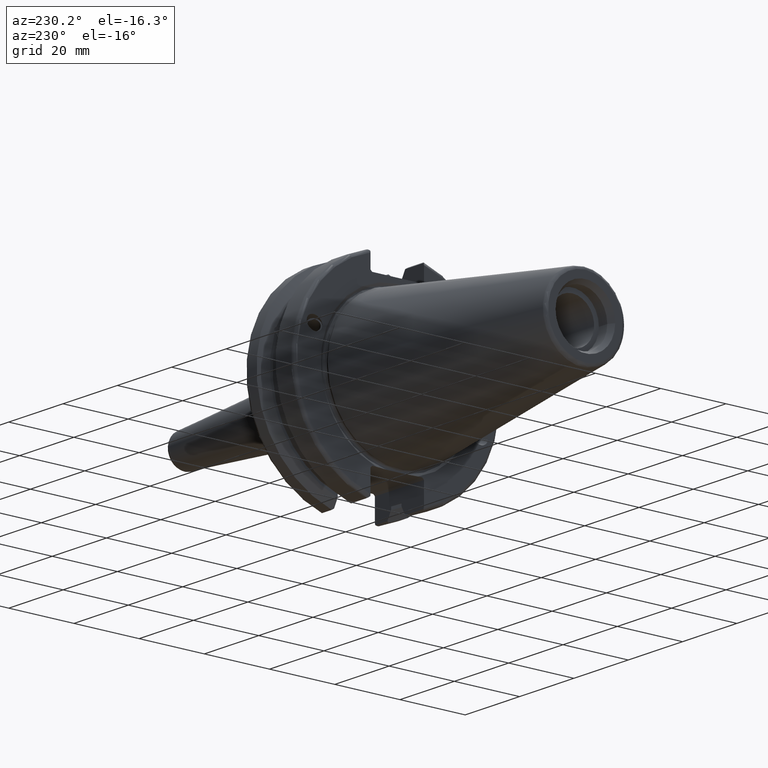
[diagram: clean part render]
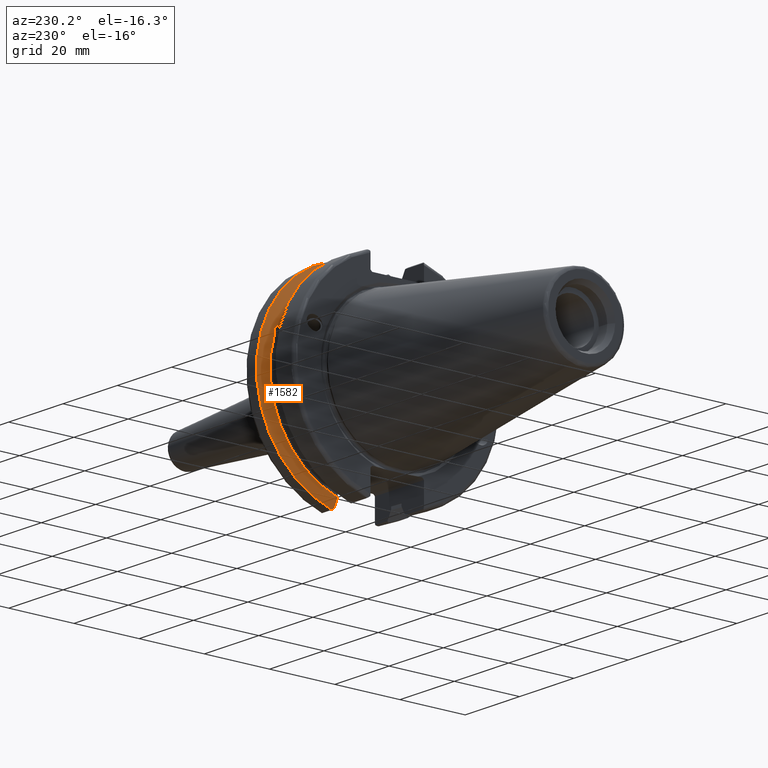
[diagram: same view with one face highlighted and labeled with its STEP entity id]
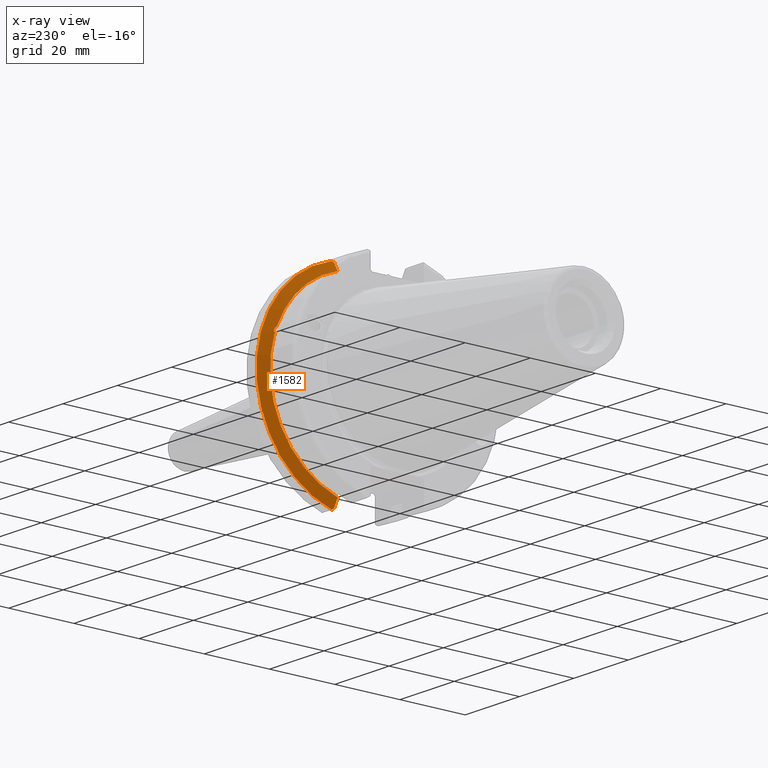
[diagram: x-ray of the same camera — body ghosted, the highlighted face saturated]
A machine part, auxiliary view. The second image highlights one B-rep face of the part: STEP entity #1582.
The next image is the same camera in x-ray: the body ghosted, the highlighted face saturated — about 0% of this face is hidden behind the body in this view.
In plain terms, the highlighted conical surface has half-angle 60 deg.
Its self-contained STEP definition (entity closure, byte-faithful):
#23=(
BOUNDED_CURVE()
B_SPLINE_CURVE(2,(#2765,#2766,#2767),.UNSPECIFIED.,.F.,.F.)
B_SPLINE_CURVE_WITH_KNOTS((3,3),(0.329353533631205,0.393258405001023),
 .UNSPECIFIED.)
CURVE()
GEOMETRIC_REPRESENTATION_ITEM()
RATIONAL_B_SPLINE_CURVE((1.00047644010577,1.00028444218286,1.))
REPRESENTATION_ITEM('')
);
#24=(
BOUNDED_CURVE()
B_SPLINE_CURVE(2,(#2782,#2783,#2784),.UNSPECIFIED.,.F.,.F.)
B_SPLINE_CURVE_WITH_KNOTS((3,3),(0.0550586467390279,0.331607789535849),
 .UNSPECIFIED.)
CURVE()
GEOMETRIC_REPRESENTATION_ITEM()
RATIONAL_B_SPLINE_CURVE((1.00031614445116,1.00095203904229,1.))
REPRESENTATION_ITEM('')
);
#31=(
BOUNDED_CURVE()
B_SPLINE_CURVE(2,(#2982,#2983,#2984),.UNSPECIFIED.,.F.,.F.)
B_SPLINE_CURVE_WITH_KNOTS((3,3),(0.,0.276549142796813),.UNSPECIFIED.)
CURVE()
GEOMETRIC_REPRESENTATION_ITEM()
RATIONAL_B_SPLINE_CURVE((1.,1.00095203904207,1.00031614445109))
REPRESENTATION_ITEM('')
);
#32=(
BOUNDED_CURVE()
B_SPLINE_CURVE(2,(#2999,#3000,#3001),.UNSPECIFIED.,.F.,.F.)
B_SPLINE_CURVE_WITH_KNOTS((3,3),(0.,0.0639048713675949),.UNSPECIFIED.)
CURVE()
GEOMETRIC_REPRESENTATION_ITEM()
RATIONAL_B_SPLINE_CURVE((1.,1.00028444218283,1.00047644010573))
REPRESENTATION_ITEM('')
);
#60=B_SPLINE_CURVE_WITH_KNOTS('',3,(#2600,#2601,#2602,#2603,#2604,#2605,
#2606,#2607),.UNSPECIFIED.,.F.,.F.,(4,2,2,4),(0.451995700189027,0.464547828547661,
0.504528771685166,0.544509714822671),.UNSPECIFIED.);
#64=B_SPLINE_CURVE_WITH_KNOTS('',3,(#2662,#2663,#2664,#2665,#2666,#2667,
#2668,#2669),.UNSPECIFIED.,.F.,.F.,(4,2,2,4),(0.544509714822671,0.584490657960176,
0.624471601097681,0.637023729456316),.UNSPECIFIED.);
#91=CONICAL_SURFACE('',#1773,30.3546886482472,1.0471975511966);
#437=FACE_OUTER_BOUND('',#536,.T.);
#536=EDGE_LOOP('',(#1425,#1426,#1427,#1428,#1429,#1430,#1431,#1432,#1433));
#596=CIRCLE('',#1713,28.9593772964944);
#615=CIRCLE('',#1766,31.75);
#618=CIRCLE('',#1774,28.9593772964944);
#704=VERTEX_POINT('',#2597);
#705=VERTEX_POINT('',#2599);
#712=VERTEX_POINT('',#2660);
#721=VERTEX_POINT('',#2702);
#732=VERTEX_POINT('',#2762);
#733=VERTEX_POINT('',#2764);
#774=VERTEX_POINT('',#2979);
#775=VERTEX_POINT('',#2981);
#778=VERTEX_POINT('',#2997);
#888=EDGE_CURVE('',#705,#704,#60,.T.);
#896=EDGE_CURVE('',#704,#712,#64,.T.);
#908=EDGE_CURVE('',#721,#705,#596,.T.);
#926=EDGE_CURVE('',#732,#733,#23,.T.);
#932=EDGE_CURVE('',#732,#721,#24,.T.);
#993=EDGE_CURVE('',#775,#774,#31,.T.);
#1001=EDGE_CURVE('',#778,#774,#32,.T.);
#1002=EDGE_CURVE('',#733,#778,#615,.T.);
#1008=EDGE_CURVE('',#712,#775,#618,.T.);
#1425=ORIENTED_EDGE('',*,*,#888,.T.);
#1426=ORIENTED_EDGE('',*,*,#896,.T.);
#1427=ORIENTED_EDGE('',*,*,#1008,.T.);
#1428=ORIENTED_EDGE('',*,*,#993,.T.);
#1429=ORIENTED_EDGE('',*,*,#1001,.F.);
#1430=ORIENTED_EDGE('',*,*,#1002,.F.);
#1431=ORIENTED_EDGE('',*,*,#926,.F.);
#1432=ORIENTED_EDGE('',*,*,#932,.T.);
#1433=ORIENTED_EDGE('',*,*,#908,.T.);
#1582=ADVANCED_FACE('',(#437),#91,.T.);
#1713=AXIS2_PLACEMENT_3D('',#2703,#2029,#2030);
#1766=AXIS2_PLACEMENT_3D('',#3003,#2183,#2184);
#1773=AXIS2_PLACEMENT_3D('',#3016,#2200,#2201);
#1774=AXIS2_PLACEMENT_3D('',#3017,#2202,#2203);
#2029=DIRECTION('center_axis',(1.,0.,0.));
#2030=DIRECTION('ref_axis',(0.,0.,-1.));
#2183=DIRECTION('center_axis',(1.,0.,0.));
#2184=DIRECTION('ref_axis',(0.,0.,-1.));
#2200=DIRECTION('center_axis',(1.,0.,0.));
#2201=DIRECTION('ref_axis',(0.,1.,0.));
#2202=DIRECTION('center_axis',(1.,0.,0.));
#2203=DIRECTION('ref_axis',(0.,0.,-1.));
#2597=CARTESIAN_POINT('',(13.276,27.51401829017,10.0142836826778));
#2599=CARTESIAN_POINT('',(13.091,27.4956274489925,9.09043478536249));
#2600=CARTESIAN_POINT('Ctrl Pts',(13.091,27.4956274489925,9.09043478536249));
#2601=CARTESIAN_POINT('Ctrl Pts',(13.1051204071996,27.5087667900418,9.1286059707622));
#2602=CARTESIAN_POINT('Ctrl Pts',(13.1185929817857,27.5206055003512,9.16696618806879));
#2603=CARTESIAN_POINT('Ctrl Pts',(13.171981441159,27.5642934663232,9.32791534028656));
#2604=CARTESIAN_POINT('Ctrl Pts',(13.2101197084175,27.5867382255984,9.46717946402648));
#2605=CARTESIAN_POINT('Ctrl Pts',(13.2623106446058,27.5847569104122,9.74771639360672));
#2606=CARTESIAN_POINT('Ctrl Pts',(13.276,27.559599249844,9.8890510252165));
#2607=CARTESIAN_POINT('Ctrl Pts',(13.276,27.51401829017,10.0142836826778));
#2660=CARTESIAN_POINT('',(13.091,26.9060914640648,10.7101715919071));
#2662=CARTESIAN_POINT('Ctrl Pts',(13.276,27.51401829017,10.0142836826778));
#2663=CARTESIAN_POINT('Ctrl Pts',(13.276,27.4684373304961,10.139516340139));
#2664=CARTESIAN_POINT('Ctrl Pts',(13.2623106446058,27.3968610665578,10.2639559818059));
#2665=CARTESIAN_POINT('Ctrl Pts',(13.2101197084175,27.2180531796526,10.4801333026531));
#2666=CARTESIAN_POINT('Ctrl Pts',(13.171981441159,27.1113422433189,10.5723885976054));
#2667=CARTESIAN_POINT('Ctrl Pts',(13.1185929817857,26.9744191989197,10.6676007180673));
#2668=CARTESIAN_POINT('Ctrl Pts',(13.1051204071996,26.9406927482839,10.6893765730703));
#2669=CARTESIAN_POINT('Ctrl Pts',(13.091,26.9060914640648,10.7101715919071));
#2702=CARTESIAN_POINT('',(13.091,8.19,-27.7771386827498));
#2703=CARTESIAN_POINT('Origin',(13.091,0.,0.));
#2762=CARTESIAN_POINT('',(14.4234146964874,8.19,-30.1755016258903));
#2764=CARTESIAN_POINT('',(14.7021667690756,8.67204822802685,-30.5427254764662));
#2765=CARTESIAN_POINT('Ctrl Pts',(14.4234146964874,8.19,-30.1755016258903));
#2766=CARTESIAN_POINT('Ctrl Pts',(14.5611085187884,8.42917748263465,-30.3577067892692));
#2767=CARTESIAN_POINT('Ctrl Pts',(14.7021667690756,8.67204822802686,-30.5427254764662));
#2782=CARTESIAN_POINT('Ctrl Pts',(14.4234146964874,8.19,-30.1755016258903));
#2783=CARTESIAN_POINT('Ctrl Pts',(13.7296364384736,8.19,-28.9303689539661));
#2784=CARTESIAN_POINT('Ctrl Pts',(13.091,8.19,-27.7771386827498));
#2979=CARTESIAN_POINT('',(14.4234146964874,8.19,30.1755016258903));
#2981=CARTESIAN_POINT('',(13.091,8.19,27.7771386827498));
#2982=CARTESIAN_POINT('Ctrl Pts',(13.091,8.19,27.7771386827498));
#2983=CARTESIAN_POINT('Ctrl Pts',(13.7296364384736,8.19,28.930368953966));
#2984=CARTESIAN_POINT('Ctrl Pts',(14.4234146964874,8.19,30.1755016258903));
#2997=CARTESIAN_POINT('',(14.7021667690756,8.67204822802685,30.5427254764662));
#2999=CARTESIAN_POINT('Ctrl Pts',(14.7021667690756,8.67204822802686,30.5427254764662));
#3000=CARTESIAN_POINT('Ctrl Pts',(14.5611085187837,8.42917748262646,30.357706789263));
#3001=CARTESIAN_POINT('Ctrl Pts',(14.4234146964874,8.19,30.1755016258903));
#3003=CARTESIAN_POINT('Origin',(14.7021667690756,0.,0.));
#3016=CARTESIAN_POINT('Origin',(13.8965833845378,0.,0.));
#3017=CARTESIAN_POINT('Origin',(13.091,0.,0.));